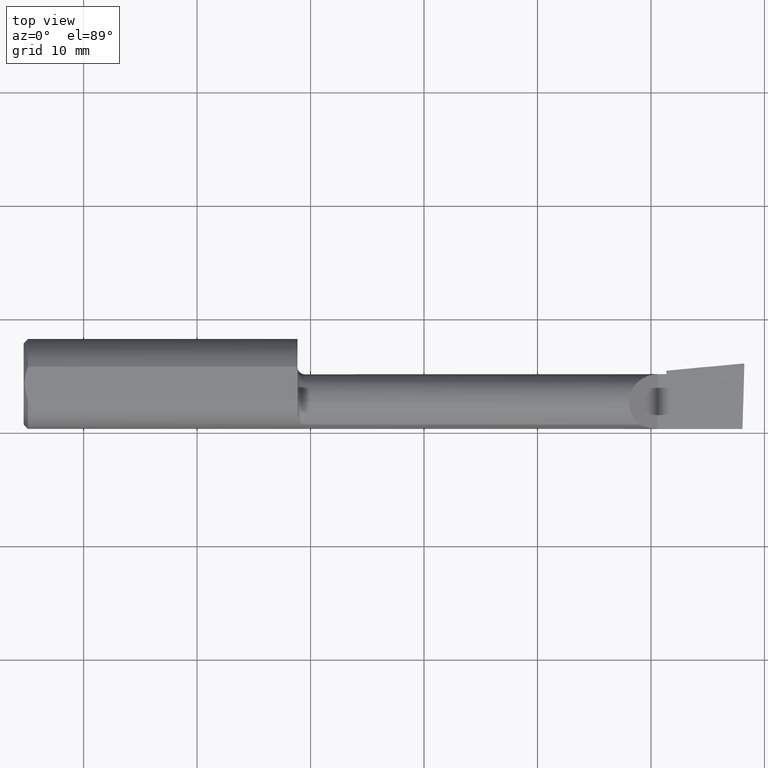
[diagram: clean part render]
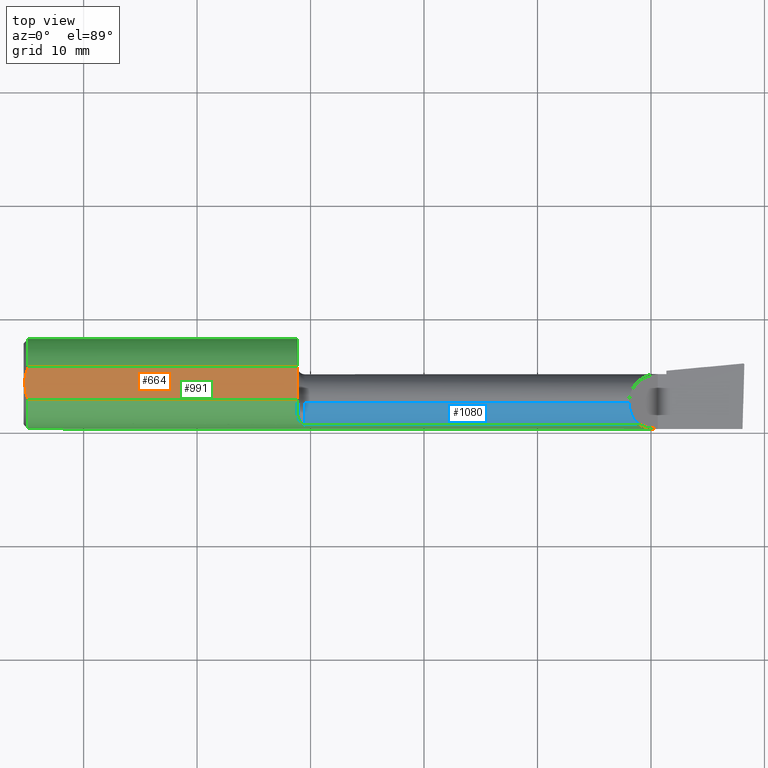
[diagram: same view with three faces highlighted in distinct colors, each labeled with its STEP entity id]
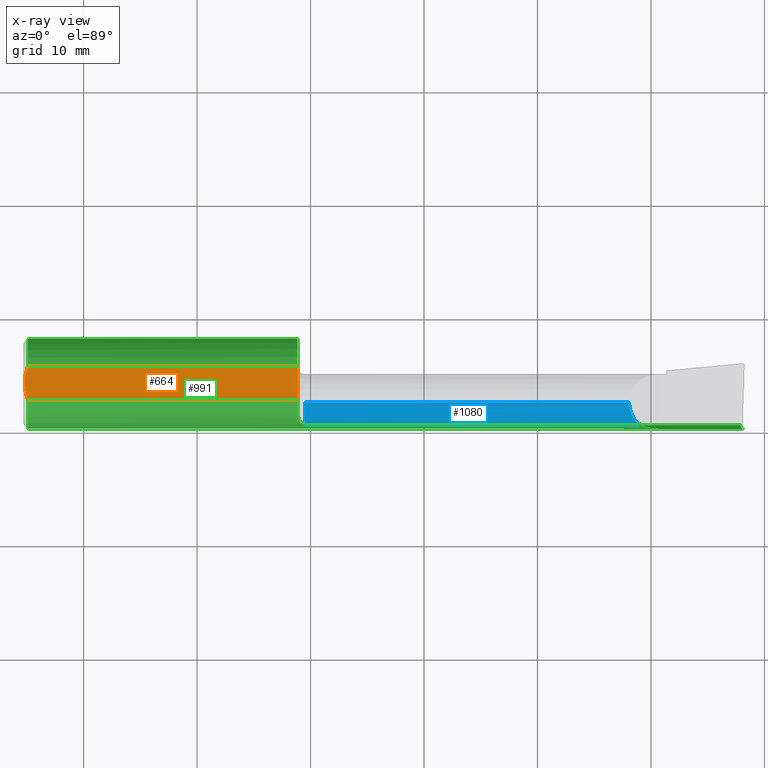
[diagram: x-ray of the same camera — body ghosted, the three highlighted faces saturated]
A machine part, top view with three faces highlighted in distinct colors.
The next image is the same camera in x-ray (body ghosted, the three faces saturated) — at least one of them is partly hidden behind the body in this view.
Their STEP definitions:

[orange] entity #664 — the highlighted planar face has unit normal (0, 0, -1).
#11 = CARTESIAN_POINT ( 'NONE',  ( 0.3809999999999924558, -1.462034237629201039, 3.685539999999999150 ) ) ;
#23 = CARTESIAN_POINT ( 'NONE',  ( 24.12999999999999901, 1.462034237629201039, 3.685539999999999150 ) ) ;
#88 = AXIS2_PLACEMENT_3D ( 'NONE', #782, #966, #101 ) ;
#98 = EDGE_CURVE ( 'NONE', #1192, #858, #120, .T. ) ;
#101 = DIRECTION ( 'NONE',  ( -1.000000000000000000, 0.000000000000000000, 0.000000000000000000 ) ) ;
#120 = B_SPLINE_CURVE_WITH_KNOTS ( 'NONE', 3,
 ( #132, #522, #619, #702, #902, #11 ),
 .UNSPECIFIED., .F., .F.,
 ( 4, 2, 4 ),
 ( 0.004431269906162986494, 0.005173847132308764286, 0.005916424358454542079 ),
 .UNSPECIFIED. ) ;
#132 = CARTESIAN_POINT ( 'NONE',  ( 0.1015999999999948056, 3.500044931498621813E-16, 3.685539999999999150 ) ) ;
#161 = EDGE_CURVE ( 'NONE', #583, #905, #213, .T. ) ;
#162 = CARTESIAN_POINT ( 'NONE',  ( 63.50000000000000000, -1.462034237629201039, 3.685539999999999150 ) ) ;
#166 = CARTESIAN_POINT ( 'NONE',  ( 0.2941137992624218711, 1.226404617004863917, 3.685539999999999150 ) ) ;
#185 = ORIENTED_EDGE ( 'NONE', *, *, #98, .T. ) ;
#213 = LINE ( 'NONE', #304, #998 ) ;
#221 = VERTEX_POINT ( 'NONE', #262 ) ;
#246 = CARTESIAN_POINT ( 'NONE',  ( 0.3809999999999924558, -1.462034237629201039, 3.685539999999999150 ) ) ;
#248 = DIRECTION ( 'NONE',  ( -1.000000000000000000, -0.000000000000000000, -0.000000000000000000 ) ) ;
#250 = EDGE_CURVE ( 'NONE', #221, #1192, #426, .T. ) ;
#262 = CARTESIAN_POINT ( 'NONE',  ( 0.3809999999999924558, 1.462034237629201039, 3.685539999999999150 ) ) ;
#304 = CARTESIAN_POINT ( 'NONE',  ( 24.12999999999999901, 2.540000000000000480, 3.685539999999999150 ) ) ;
#331 = EDGE_CURVE ( 'NONE', #905, #858, #1020, .T. ) ;
#354 = EDGE_CURVE ( 'NONE', #221, #583, #1218, .T. ) ;
#363 = EDGE_LOOP ( 'NONE', ( #1209, #898, #834, #185, #742 ) ) ;
#364 = CARTESIAN_POINT ( 'NONE',  ( 63.50000000000000000, 1.462034237629201039, 3.685539999999999150 ) ) ;
#424 = PLANE ( 'NONE',  #88 ) ;
#426 = B_SPLINE_CURVE_WITH_KNOTS ( 'NONE', 3,
 ( #1097, #166, #1197, #633, #1008, #550 ),
 .UNSPECIFIED., .F., .F.,
 ( 4, 2, 4 ),
 ( 0.002945485300212928158, 0.003688377603187957543, 0.004431269906162986494 ),
 .UNSPECIFIED. ) ;
#522 = CARTESIAN_POINT ( 'NONE',  ( 0.1015999999999284698, -0.2510152873235154125, 3.685539999999999150 ) ) ;
#525 = VECTOR ( 'NONE', #625, 1000.000000000000000 ) ;
#550 = CARTESIAN_POINT ( 'NONE',  ( 0.1015999999999948056, 3.500044931498621813E-16, 3.685539999999999150 ) ) ;
#583 = VERTEX_POINT ( 'NONE', #23 ) ;
#619 = CARTESIAN_POINT ( 'NONE',  ( 0.1280887710546985137, -0.5028858476047466386, 3.685539999999999594 ) ) ;
#625 = DIRECTION ( 'NONE',  ( 1.000000000000000000, 0.000000000000000000, 0.000000000000000000 ) ) ;
#633 = CARTESIAN_POINT ( 'NONE',  ( 0.1274433735584585836, 0.4981409861471362555, 3.685539999999998706 ) ) ;
#664 = ADVANCED_FACE ( 'NONE', ( #1181 ), #424, .F. ) ;
#702 = CARTESIAN_POINT ( 'NONE',  ( 0.2247358976179796297, -0.9898225455501730163, 3.685539999999998706 ) ) ;
#742 = ORIENTED_EDGE ( 'NONE', *, *, #331, .F. ) ;
#782 = CARTESIAN_POINT ( 'NONE',  ( 0.000000000000000000, 2.540000000000000480, 3.685539999999999150 ) ) ;
#834 = ORIENTED_EDGE ( 'NONE', *, *, #250, .T. ) ;
#837 = CARTESIAN_POINT ( 'NONE',  ( 24.12999999999999901, -1.462034237629201483, 3.685539999999999150 ) ) ;
#858 = VERTEX_POINT ( 'NONE', #246 ) ;
#886 = CARTESIAN_POINT ( 'NONE',  ( 0.1015999999999948056, 3.500044931498621813E-16, 3.685539999999999150 ) ) ;
#897 = DIRECTION ( 'NONE',  ( 0.000000000000000000, -1.000000000000000000, 0.000000000000000000 ) ) ;
#898 = ORIENTED_EDGE ( 'NONE', *, *, #354, .F. ) ;
#902 = CARTESIAN_POINT ( 'NONE',  ( 0.2946835978831989777, -1.227949873118057589, 3.685539999999999150 ) ) ;
#905 = VERTEX_POINT ( 'NONE', #837 ) ;
#966 = DIRECTION ( 'NONE',  ( -0.000000000000000000, 0.000000000000000000, -1.000000000000000000 ) ) ;
#998 = VECTOR ( 'NONE', #897, 1000.000000000000000 ) ;
#1008 = CARTESIAN_POINT ( 'NONE',  ( 0.1015999999999299547, 0.2511217935535139389, 3.685539999999999150 ) ) ;
#1020 = LINE ( 'NONE', #162, #1196 ) ;
#1097 = CARTESIAN_POINT ( 'NONE',  ( 0.3809999999999924558, 1.462034237629201039, 3.685539999999999150 ) ) ;
#1181 = FACE_OUTER_BOUND ( 'NONE', #363, .T. ) ;
#1192 = VERTEX_POINT ( 'NONE', #886 ) ;
#1196 = VECTOR ( 'NONE', #248, 1000.000000000000000 ) ;
#1197 = CARTESIAN_POINT ( 'NONE',  ( 0.2235145214959431414, 0.9851334071146859994, 3.685539999999999594 ) ) ;
#1209 = ORIENTED_EDGE ( 'NONE', *, *, #161, .F. ) ;
#1218 = LINE ( 'NONE', #364, #525 ) ;

[blue] entity #1080 — the highlighted cylindrical surface (edge-blend (fillet) strip) has radius 2.54 mm, axis along (-1, -0, -0).
#42 = EDGE_CURVE ( 'NONE', #381, #231, #195, .T. ) ;
#47 = AXIS2_PLACEMENT_3D ( 'NONE', #1055, #211, #795 ) ;
#53 = CARTESIAN_POINT ( 'NONE',  ( 24.76500000000000057, -1.678939999999999433, 2.540000000000000036 ) ) ;
#85 = EDGE_LOOP ( 'NONE', ( #1188, #1130, #1041, #588 ) ) ;
#129 = CARTESIAN_POINT ( 'NONE',  ( 54.22074505735906769, -3.599887049924353821, 1.661794942640917094 ) ) ;
#141 =( BOUNDED_CURVE ( )  B_SPLINE_CURVE ( 3, ( #1077, #676, #1068, #129 ),
 .UNSPECIFIED., .F., .F. ) 
 B_SPLINE_CURVE_WITH_KNOTS ( ( 4, 4 ),
 ( 0.000000000000000000, 0.8576058604657700313 ),
 .UNSPECIFIED. ) 
 CURVE ( )  GEOMETRIC_REPRESENTATION_ITEM ( )  RATIONAL_B_SPLINE_CURVE ( ( 1.000000000000000000, 0.9396427478180653381, 0.9396427478180653381, 1.000000000000000000 ) ) 
 REPRESENTATION_ITEM ( '' )  );
#142 = EDGE_CURVE ( 'NONE', #1141, #969, #1176, .T. ) ;
#195 = LINE ( 'NONE', #582, #217 ) ;
#196 = CIRCLE ( 'NONE', #901, 2.540000000000000036 ) ;
#211 = DIRECTION ( 'NONE',  ( -1.000000000000000000, -0.000000000000000000, -0.000000000000000000 ) ) ;
#217 = VECTOR ( 'NONE', #1052, 1000.000000000000000 ) ;
#231 = VERTEX_POINT ( 'NONE', #53 ) ;
#235 = EDGE_CURVE ( 'NONE', #231, #1141, #196, .T. ) ;
#336 = CARTESIAN_POINT ( 'NONE',  ( 40.38599999999999568, -3.599887049924355154, 1.661794942640912653 ) ) ;
#358 = DIRECTION ( 'NONE',  ( 0.000000000000000000, 0.000000000000000000, -1.000000000000000000 ) ) ;
#380 = VECTOR ( 'NONE', #1162, 1000.000000000000000 ) ;
#381 = VERTEX_POINT ( 'NONE', #435 ) ;
#435 = CARTESIAN_POINT ( 'NONE',  ( 53.34253999999999252, -1.678939999999999433, 2.540000000000000036 ) ) ;
#491 = CYLINDRICAL_SURFACE ( 'NONE', #47, 2.540000000000000036 ) ;
#529 = DIRECTION ( 'NONE',  ( 1.000000000000000000, 0.000000000000000000, 0.000000000000000000 ) ) ;
#582 = CARTESIAN_POINT ( 'NONE',  ( 24.12999999999999901, -1.678939999999999433, 2.540000000000000036 ) ) ;
#588 = ORIENTED_EDGE ( 'NONE', *, *, #142, .T. ) ;
#601 = FACE_OUTER_BOUND ( 'NONE', #85, .T. ) ;
#676 = CARTESIAN_POINT ( 'NONE',  ( 53.34253999999998541, -2.428222866824016446, 2.540000000000000036 ) ) ;
#694 = CARTESIAN_POINT ( 'NONE',  ( 24.76500000000000057, -3.599887049924355154, 1.661794942640912653 ) ) ;
#751 = CARTESIAN_POINT ( 'NONE',  ( 54.22074505735906769, -3.599887049924353821, 1.661794942640917094 ) ) ;
#795 = DIRECTION ( 'NONE',  ( 0.000000000000000000, 0.000000000000000000, 1.000000000000000000 ) ) ;
#901 = AXIS2_PLACEMENT_3D ( 'NONE', #930, #529, #358 ) ;
#930 = CARTESIAN_POINT ( 'NONE',  ( 24.76500000000000057, -1.678939999999999433, 0.000000000000000000 ) ) ;
#969 = VERTEX_POINT ( 'NONE', #751 ) ;
#1041 = ORIENTED_EDGE ( 'NONE', *, *, #235, .T. ) ;
#1052 = DIRECTION ( 'NONE',  ( -1.000000000000000000, -0.000000000000000000, -0.000000000000000000 ) ) ;
#1055 = CARTESIAN_POINT ( 'NONE',  ( 24.12999999999999901, -1.678939999999999433, 0.000000000000000000 ) ) ;
#1068 = CARTESIAN_POINT ( 'NONE',  ( 53.65407863508172426, -3.109668751225283412, 2.228461364918261189 ) ) ;
#1077 = CARTESIAN_POINT ( 'NONE',  ( 53.34253999999999252, -1.678939999999999433, 2.540000000000000036 ) ) ;
#1080 = ADVANCED_FACE ( 'NONE', ( #601 ), #491, .T. ) ;
#1130 = ORIENTED_EDGE ( 'NONE', *, *, #42, .T. ) ;
#1141 = VERTEX_POINT ( 'NONE', #694 ) ;
#1162 = DIRECTION ( 'NONE',  ( 1.000000000000000000, 0.000000000000000000, 0.000000000000000000 ) ) ;
#1176 = LINE ( 'NONE', #336, #380 ) ;
#1188 = ORIENTED_EDGE ( 'NONE', *, *, #1198, .F. ) ;
#1198 = EDGE_CURVE ( 'NONE', #381, #969, #141, .T. ) ;

[green] entity #991 — the highlighted cylindrical surface (partial cylindrical patch) has radius 3.9649 mm, axis along (-1, -0, -0).
#9 = CARTESIAN_POINT ( 'NONE',  ( 24.12999999999999901, 0.000000000000000000, 0.000000000000000000 ) ) ;
#10 = CARTESIAN_POINT ( 'NONE',  ( 24.46013817098802789, -3.482913605042309957, 1.896197172601131298 ) ) ;
#17 = CARTESIAN_POINT ( 'NONE',  ( 24.35039366075619327, -3.372877125526299480, 2.089606631779967749 ) ) ;
#23 = CARTESIAN_POINT ( 'NONE',  ( 24.12999999999999901, 1.462034237629201039, 3.685539999999999150 ) ) ;
#28 = VECTOR ( 'NONE', #114, 1000.000000000000000 ) ;
#51 = ORIENTED_EDGE ( 'NONE', *, *, #537, .T. ) ;
#62 = EDGE_CURVE ( 'NONE', #548, #969, #149, .T. ) ;
#71 = FACE_OUTER_BOUND ( 'NONE', #1185, .T. ) ;
#104 = ORIENTED_EDGE ( 'NONE', *, *, #340, .F. ) ;
#111 = CIRCLE ( 'NONE', #801, 3.964939999999999465 ) ;
#114 = DIRECTION ( 'NONE',  ( -1.000000000000000000, -0.000000000000000000, -0.000000000000000000 ) ) ;
#122 = CARTESIAN_POINT ( 'NONE',  ( 24.21278457167212395, -3.097160976341655658, 2.480706191382077819 ) ) ;
#124 = EDGE_CURVE ( 'NONE', #252, #270, #713, .T. ) ;
#134 = AXIS2_PLACEMENT_3D ( 'NONE', #1208, #356, #434 ) ;
#142 = EDGE_CURVE ( 'NONE', #1141, #969, #1176, .T. ) ;
#149 =( BOUNDED_CURVE ( )  B_SPLINE_CURVE ( 3, ( #1072, #229, #397, #689 ),
 .UNSPECIFIED., .F., .T. ) 
 B_SPLINE_CURVE_WITH_KNOTS ( ( 4, 4 ),
 ( 4.713029595418891660, 5.144867427157565842 ),
 .UNSPECIFIED. ) 
 CURVE ( )  GEOMETRIC_REPRESENTATION_ITEM ( )  RATIONAL_B_SPLINE_CURVE ( ( 1.000000000000000000, 0.9845199556095911575, 0.9845199556095911575, 1.000000000000000000 ) ) 
 REPRESENTATION_ITEM ( '' )  );
#155 = CARTESIAN_POINT ( 'NONE',  ( 55.88000000000000256, -3.964939999999999465, -8.673617379884035472E-16 ) ) ;
#162 = CARTESIAN_POINT ( 'NONE',  ( 63.50000000000000000, -1.462034237629201039, 3.685539999999999150 ) ) ;
#169 = CARTESIAN_POINT ( 'NONE',  ( 24.16986463659906548, -3.000605534502818639, -2.611659286570838567 ) ) ;
#170 = DIRECTION ( 'NONE',  ( -1.000000000000000000, -0.000000000000000000, -0.000000000000000000 ) ) ;
#174 = CARTESIAN_POINT ( 'NONE',  ( 24.46080737346493095, -3.483507757590341480, -1.895116055831529200 ) ) ;
#176 = AXIS2_PLACEMENT_3D ( 'NONE', #922, #449, #835 ) ;
#180 = CARTESIAN_POINT ( 'NONE',  ( 24.29735470549298881, -3.287133544512903072, -2.222929241776085085 ) ) ;
#187 = CARTESIAN_POINT ( 'NONE',  ( 55.88000000000000256, -3.964939186418879213, 0.002539999999978843903 ) ) ;
#190 = ORIENTED_EDGE ( 'NONE', *, *, #1160, .F. ) ;
#221 = VERTEX_POINT ( 'NONE', #262 ) ;
#222 = CARTESIAN_POINT ( 'NONE',  ( 63.50000000000000000, -3.964939999999998577, -8.673617379884035472E-16 ) ) ;
#229 = CARTESIAN_POINT ( 'NONE',  ( 55.30478309583587304, -3.964570693771735765, 0.5777569041641154035 ) ) ;
#236 =( BOUNDED_CURVE ( )  B_SPLINE_CURVE ( 3, ( #857, #1134, #1145, #1224 ),
 .UNSPECIFIED., .F., .F. ) 
 B_SPLINE_CURVE_WITH_KNOTS ( ( 4, 4 ),
 ( 0.9109982351287744251, 1.343476681901648373 ),
 .UNSPECIFIED. ) 
 CURVE ( )  GEOMETRIC_REPRESENTATION_ITEM ( )  RATIONAL_B_SPLINE_CURVE ( ( 1.000000000000000000, 0.9844741726620818145, 0.9844741726620818145, 1.000000000000000000 ) ) 
 REPRESENTATION_ITEM ( '' )  );
#246 = CARTESIAN_POINT ( 'NONE',  ( 0.3809999999999924558, -1.462034237629201039, 3.685539999999999150 ) ) ;
#248 = DIRECTION ( 'NONE',  ( -1.000000000000000000, -0.000000000000000000, -0.000000000000000000 ) ) ;
#252 = VERTEX_POINT ( 'NONE', #744 ) ;
#255 = CIRCLE ( 'NONE', #831, 3.964939999999999465 ) ;
#262 = CARTESIAN_POINT ( 'NONE',  ( 0.3809999999999924558, 1.462034237629201039, 3.685539999999999150 ) ) ;
#270 = VERTEX_POINT ( 'NONE', #155 ) ;
#274 = CARTESIAN_POINT ( 'NONE',  ( 24.68223186210839870, -3.593202679785876708, -1.676360523546626791 ) ) ;
#284 = ORIENTED_EDGE ( 'NONE', *, *, #1123, .T. ) ;
#307 = CARTESIAN_POINT ( 'NONE',  ( 24.18234523350258414, -2.993776095290413330, 2.604749827684863739 ) ) ;
#324 = CARTESIAN_POINT ( 'NONE',  ( 24.61257322604091513, -3.573254725572614365, 1.718470549442531192 ) ) ;
#331 = EDGE_CURVE ( 'NONE', #905, #858, #1020, .T. ) ;
#336 = CARTESIAN_POINT ( 'NONE',  ( 40.38599999999999568, -3.599887049924355154, 1.661794942640912653 ) ) ;
#340 = EDGE_CURVE ( 'NONE', #754, #583, #1173, .T. ) ;
#351 = CARTESIAN_POINT ( 'NONE',  ( 24.12999999999999901, -2.519138184568832983, -3.061811883615197072 ) ) ;
#354 = EDGE_CURVE ( 'NONE', #221, #583, #1218, .T. ) ;
#356 = DIRECTION ( 'NONE',  ( 1.000000000000000000, -0.000000000000000000, -0.000000000000000000 ) ) ;
#364 = CARTESIAN_POINT ( 'NONE',  ( 63.50000000000000000, 1.462034237629201039, 3.685539999999999150 ) ) ;
#380 = VECTOR ( 'NONE', #1162, 1000.000000000000000 ) ;
#397 = CARTESIAN_POINT ( 'NONE',  ( 54.74300171423059425, -3.840973355998292149, 1.139538285769383430 ) ) ;
#401 = DIRECTION ( 'NONE',  ( 1.000000000000000000, -0.000000000000000000, -0.000000000000000000 ) ) ;
#413 = CARTESIAN_POINT ( 'NONE',  ( 24.12999999999999901, -2.519138184568832983, 3.061811883615197072 ) ) ;
#415 = LINE ( 'NONE', #602, #28 ) ;
#434 = DIRECTION ( 'NONE',  ( 0.000000000000000000, 0.000000000000000000, -1.000000000000000000 ) ) ;
#449 = DIRECTION ( 'NONE',  ( 1.000000000000000000, 0.000000000000000000, 0.000000000000000000 ) ) ;
#484 = B_SPLINE_CURVE_WITH_KNOTS ( 'NONE', 3,
 ( #789, #509, #887, #324, #520, #982, #10, #17, #802, #122, #307, #597, #586, #900 ),
 .UNSPECIFIED., .F., .F.,
 ( 4, 2, 2, 2, 2, 2, 4 ),
 ( 0.000000000000000000, 0.0001252016961403291614, 0.0002504033922806583228, 0.0005008067845613099235, 0.001001613569122608138, 0.001502420353683906135, 0.002003227138245204132 ),
 .UNSPECIFIED. ) ;
#500 = CIRCLE ( 'NONE', #1129, 3.964939999999999465 ) ;
#509 = CARTESIAN_POINT ( 'NONE',  ( 24.72244100483409923, -3.599887049924355154, 1.661794942640913098 ) ) ;
#516 = EDGE_CURVE ( 'NONE', #642, #252, #236, .T. ) ;
#520 = CARTESIAN_POINT ( 'NONE',  ( 24.58245480245961190, -3.560155007699746577, 1.745585502201545847 ) ) ;
#525 = VECTOR ( 'NONE', #625, 1000.000000000000000 ) ;
#537 = EDGE_CURVE ( 'NONE', #270, #548, #111, .T. ) ;
#548 = VERTEX_POINT ( 'NONE', #187 ) ;
#554 = CARTESIAN_POINT ( 'NONE',  ( 24.61266131581566086, -3.573289969088939255, -1.718397189166198880 ) ) ;
#555 = DIRECTION ( 'NONE',  ( 0.000000000000000000, 0.000000000000000000, 1.000000000000000000 ) ) ;
#557 = ORIENTED_EDGE ( 'NONE', *, *, #917, .T. ) ;
#561 = CARTESIAN_POINT ( 'NONE',  ( 24.72273214518530793, -3.599887049924846316, -1.661794942640280492 ) ) ;
#567 = ORIENTED_EDGE ( 'NONE', *, *, #830, .T. ) ;
#577 = ORIENTED_EDGE ( 'NONE', *, *, #634, .T. ) ;
#579 = CARTESIAN_POINT ( 'NONE',  ( 63.50000000000000000, 0.000000000000000000, 0.000000000000000000 ) ) ;
#583 = VERTEX_POINT ( 'NONE', #23 ) ;
#586 = CARTESIAN_POINT ( 'NONE',  ( 24.12999999999999545, -2.647704699856520349, 2.956032420268236649 ) ) ;
#589 = EDGE_CURVE ( 'NONE', #642, #816, #415, .T. ) ;
#591 = DIRECTION ( 'NONE',  ( 1.000000000000000000, 0.000000000000000000, 0.000000000000000000 ) ) ;
#597 = CARTESIAN_POINT ( 'NONE',  ( 24.14086488926298202, -2.769437744535206303, 2.842117441750147577 ) ) ;
#602 = CARTESIAN_POINT ( 'NONE',  ( 40.38599999999999568, -3.599887049924355154, -1.661794942640913098 ) ) ;
#625 = DIRECTION ( 'NONE',  ( 1.000000000000000000, 0.000000000000000000, 0.000000000000000000 ) ) ;
#634 = EDGE_CURVE ( 'NONE', #1141, #1182, #484, .T. ) ;
#642 = VERTEX_POINT ( 'NONE', #1174 ) ;
#654 = CARTESIAN_POINT ( 'NONE',  ( 24.12999999999999901, -2.519138184568832983, -3.061811883615197072 ) ) ;
#659 = DIRECTION ( 'NONE',  ( -1.000000000000000000, -0.000000000000000000, -0.000000000000000000 ) ) ;
#675 = CIRCLE ( 'NONE', #134, 3.964939999999999465 ) ;
#689 = CARTESIAN_POINT ( 'NONE',  ( 54.22074505735906769, -3.599887049924353821, 1.661794942640917094 ) ) ;
#694 = CARTESIAN_POINT ( 'NONE',  ( 24.76500000000000057, -3.599887049924355154, 1.661794942640912653 ) ) ;
#713 = LINE ( 'NONE', #222, #803 ) ;
#730 = CARTESIAN_POINT ( 'NONE',  ( 24.76500000000000057, -3.599887049924355154, -1.661794942640913098 ) ) ;
#744 = CARTESIAN_POINT ( 'NONE',  ( 63.34737096957299229, -3.964939999999998577, -1.734723475976807094E-15 ) ) ;
#751 = CARTESIAN_POINT ( 'NONE',  ( 54.22074505735906769, -3.599887049924353821, 1.661794942640917094 ) ) ;
#754 = VERTEX_POINT ( 'NONE', #351 ) ;
#759 = CARTESIAN_POINT ( 'NONE',  ( 24.76500000000000057, -3.599887049924355154, -1.661794942640913098 ) ) ;
#762 = ORIENTED_EDGE ( 'NONE', *, *, #589, .F. ) ;
#773 = DIRECTION ( 'NONE',  ( 0.000000000000000000, 0.000000000000000000, -1.000000000000000000 ) ) ;
#789 = CARTESIAN_POINT ( 'NONE',  ( 24.76500000000000057, -3.599887049924355154, 1.661794942640912653 ) ) ;
#791 = DIRECTION ( 'NONE',  ( -1.000000000000000000, -0.000000000000000000, -0.000000000000000000 ) ) ;
#801 = AXIS2_PLACEMENT_3D ( 'NONE', #1038, #170, #555 ) ;
#802 = CARTESIAN_POINT ( 'NONE',  ( 24.29726499476740287, -3.286836667701077186, 2.223289014318797996 ) ) ;
#803 = VECTOR ( 'NONE', #791, 1000.000000000000000 ) ;
#816 = VERTEX_POINT ( 'NONE', #730 ) ;
#825 = ORIENTED_EDGE ( 'NONE', *, *, #62, .T. ) ;
#830 = EDGE_CURVE ( 'NONE', #1142, #221, #675, .T. ) ;
#831 = AXIS2_PLACEMENT_3D ( 'NONE', #9, #591, #773 ) ;
#835 = DIRECTION ( 'NONE',  ( 0.000000000000000000, 0.000000000000000000, -1.000000000000000000 ) ) ;
#837 = CARTESIAN_POINT ( 'NONE',  ( 24.12999999999999901, -1.462034237629201483, 3.685539999999999150 ) ) ;
#851 = CARTESIAN_POINT ( 'NONE',  ( 24.13000000000000256, -2.776463605467542894, -2.850094665743279521 ) ) ;
#857 = CARTESIAN_POINT ( 'NONE',  ( 63.16765444560877540, -3.599887049924355598, -1.661794942640913542 ) ) ;
#858 = VERTEX_POINT ( 'NONE', #246 ) ;
#887 = CARTESIAN_POINT ( 'NONE',  ( 24.68209333977408093, -3.593173028997537433, 1.676424154804802447 ) ) ;
#900 = CARTESIAN_POINT ( 'NONE',  ( 24.12999999999999901, -2.519138184568832983, 3.061811883615197072 ) ) ;
#905 = VERTEX_POINT ( 'NONE', #837 ) ;
#917 = EDGE_CURVE ( 'NONE', #754, #816, #1004, .T. ) ;
#922 = CARTESIAN_POINT ( 'NONE',  ( 24.12999999999999901, 0.000000000000000000, 0.000000000000000000 ) ) ;
#953 = ORIENTED_EDGE ( 'NONE', *, *, #124, .T. ) ;
#958 = DIRECTION ( 'NONE',  ( 0.000000000000000000, 0.000000000000000000, 1.000000000000000000 ) ) ;
#968 = ORIENTED_EDGE ( 'NONE', *, *, #516, .T. ) ;
#969 = VERTEX_POINT ( 'NONE', #751 ) ;
#981 = DIRECTION ( 'NONE',  ( 0.000000000000000000, 0.000000000000000000, -1.000000000000000000 ) ) ;
#982 = CARTESIAN_POINT ( 'NONE',  ( 24.50226220547250477, -3.517214224323105043, 1.831405522215773685 ) ) ;
#991 = ADVANCED_FACE ( 'NONE', ( #71 ), #1042, .T. ) ;
#995 = AXIS2_PLACEMENT_3D ( 'NONE', #579, #659, #958 ) ;
#1004 = B_SPLINE_CURVE_WITH_KNOTS ( 'NONE', 3,
 ( #654, #851, #169, #180, #1216, #174, #1133, #1021, #554, #274, #561, #759 ),
 .UNSPECIFIED., .F., .F.,
 ( 4, 2, 2, 2, 2, 4 ),
 ( 0.000000000000000000, 0.0009854161110805824755, 0.001478124166620874147, 0.001724478194391019766, 0.001847655208276092684, 0.001970832222161165818 ),
 .UNSPECIFIED. ) ;
#1020 = LINE ( 'NONE', #162, #1196 ) ;
#1021 = CARTESIAN_POINT ( 'NONE',  ( 24.58331072668533679, -3.560555847044616140, -1.744768704123050629 ) ) ;
#1038 = CARTESIAN_POINT ( 'NONE',  ( 55.88000000000000256, 0.000000000000000000, 0.000000000000000000 ) ) ;
#1042 = CYLINDRICAL_SURFACE ( 'NONE', #995, 3.964939999999999465 ) ;
#1063 = CARTESIAN_POINT ( 'NONE',  ( 0.3809999999999924558, 0.000000000000000000, -3.964939999999999465 ) ) ;
#1072 = CARTESIAN_POINT ( 'NONE',  ( 55.88000000000000256, -3.964939186418879213, 0.002539999999978843903 ) ) ;
#1123 = EDGE_CURVE ( 'NONE', #858, #1142, #500, .T. ) ;
#1129 = AXIS2_PLACEMENT_3D ( 'NONE', #1164, #401, #981 ) ;
#1133 = CARTESIAN_POINT ( 'NONE',  ( 24.50270401922562513, -3.517563494622018894, -1.830738248287723469 ) ) ;
#1134 = CARTESIAN_POINT ( 'NONE',  ( 63.22088425362750996, -3.841336638864744746, -1.138751319066783063 ) ) ;
#1141 = VERTEX_POINT ( 'NONE', #694 ) ;
#1142 = VERTEX_POINT ( 'NONE', #1063 ) ;
#1145 = CARTESIAN_POINT ( 'NONE',  ( 63.28173451222403401, -3.964939999999998577, -0.5760837926561074296 ) ) ;
#1149 = ORIENTED_EDGE ( 'NONE', *, *, #354, .T. ) ;
#1160 = EDGE_CURVE ( 'NONE', #905, #1182, #255, .T. ) ;
#1162 = DIRECTION ( 'NONE',  ( 1.000000000000000000, 0.000000000000000000, 0.000000000000000000 ) ) ;
#1164 = CARTESIAN_POINT ( 'NONE',  ( 0.3809999999999924558, 0.000000000000000000, 0.000000000000000000 ) ) ;
#1173 = CIRCLE ( 'NONE', #176, 3.964939999999999465 ) ;
#1174 = CARTESIAN_POINT ( 'NONE',  ( 63.16765444560877540, -3.599887049924355598, -1.661794942640913542 ) ) ;
#1176 = LINE ( 'NONE', #336, #380 ) ;
#1182 = VERTEX_POINT ( 'NONE', #413 ) ;
#1185 = EDGE_LOOP ( 'NONE', ( #762, #968, #953, #51, #825, #1245, #577, #190, #1229, #284, #567, #1149, #104, #557 ) ) ;
#1196 = VECTOR ( 'NONE', #248, 1000.000000000000000 ) ;
#1208 = CARTESIAN_POINT ( 'NONE',  ( 0.3809999999999924558, 0.000000000000000000, 0.000000000000000000 ) ) ;
#1216 = CARTESIAN_POINT ( 'NONE',  ( 24.35048060739425679, -3.373116484278351646, -2.089258773282959059 ) ) ;
#1218 = LINE ( 'NONE', #364, #525 ) ;
#1224 = CARTESIAN_POINT ( 'NONE',  ( 63.34737096957299229, -3.964939999999998577, -1.734723475976807094E-15 ) ) ;
#1229 = ORIENTED_EDGE ( 'NONE', *, *, #331, .T. ) ;
#1245 = ORIENTED_EDGE ( 'NONE', *, *, #142, .F. ) ;